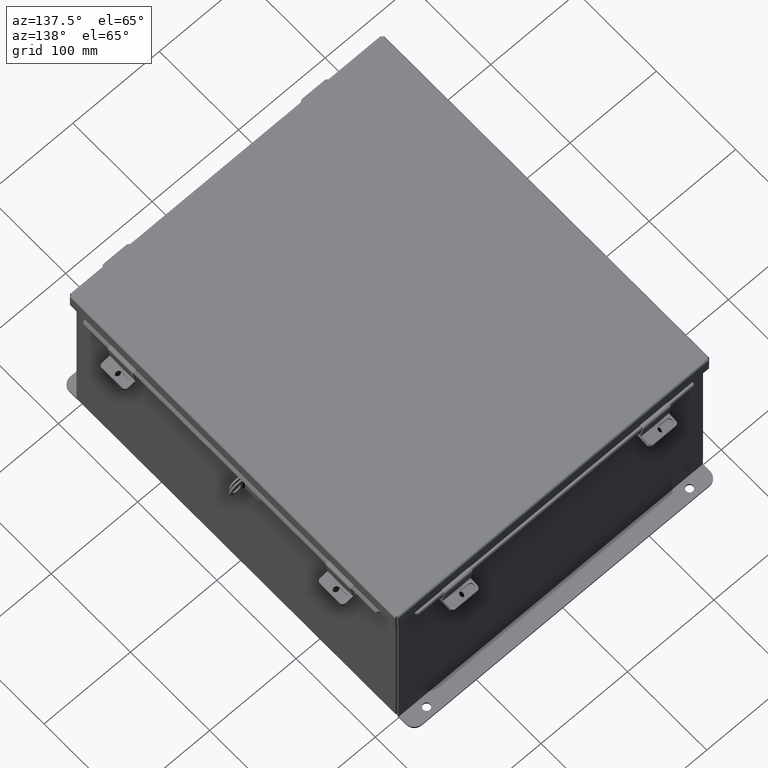
[diagram: clean part render]
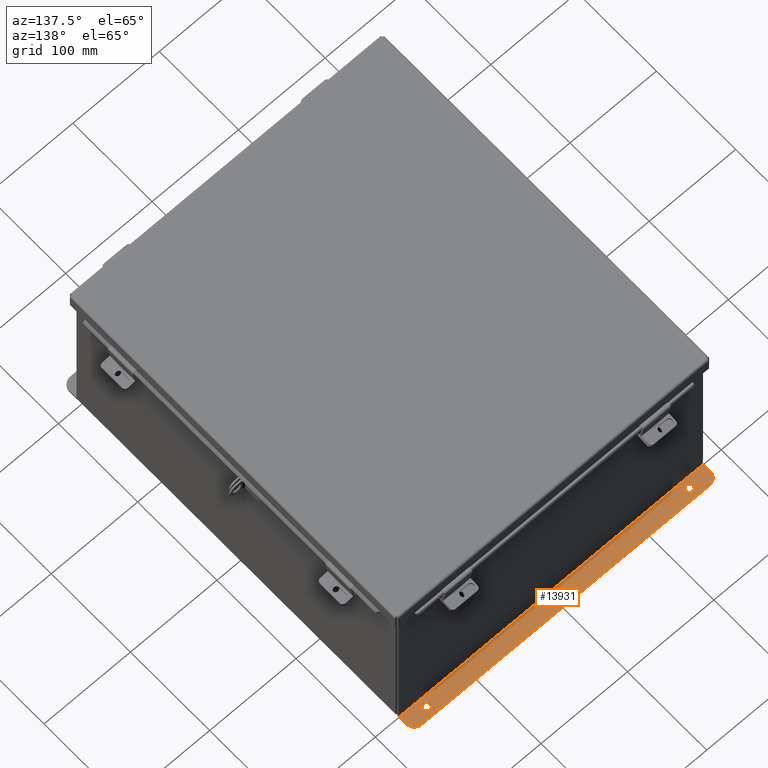
[diagram: same view with one face highlighted and labeled with its STEP entity id]
A machine part, auxiliary view. The second image highlights one B-rep face of the part: STEP entity #13931.
In plain terms, the highlighted planar face has unit normal (0, 0, 1).
Its self-contained STEP definition (entity closure, byte-faithful):
#522 = AXIS2_PLACEMENT_3D ( 'NONE', #19286, #9925, #688 ) ;
#688 = DIRECTION ( 'NONE',  ( 0.0000000000000000000, -1.000000000000000000, 3.502369222646487400E-015 ) ) ;
#771 = DIRECTION ( 'NONE',  ( 0.0000000000000000000, 3.702694488566362300E-015, 1.000000000000000000 ) ) ;
#822 = ORIENTED_EDGE ( 'NONE', *, *, #4914, .T. ) ;
#1345 = DIRECTION ( 'NONE',  ( -0.0000000000000000000, -3.702694488566362300E-015, -1.000000000000000000 ) ) ;
#1605 = DIRECTION ( 'NONE',  ( -0.0000000000000000000, -1.000000000000000000, 3.702694488566362300E-015 ) ) ;
#1795 = ORIENTED_EDGE ( 'NONE', *, *, #11952, .T. ) ;
#2724 = AXIS2_PLACEMENT_3D ( 'NONE', #10601, #1345, #12164 ) ;
#2799 = CARTESIAN_POINT ( 'NONE',  ( 5.987799999999998200, 0.2067999999999996000, -4.112300000000001200 ) ) ;
#2833 = CARTESIAN_POINT ( 'NONE',  ( 6.550299999999998200, 0.3627999999999997300, -4.112300000000002100 ) ) ;
#2847 = DIRECTION ( 'NONE',  ( 1.000000000000000000, -0.0000000000000000000, -0.0000000000000000000 ) ) ;
#3107 = FACE_BOUND ( 'NONE', #3200, .T. ) ;
#3200 = EDGE_LOOP ( 'NONE', ( #17813, #822 ) ) ;
#3345 = EDGE_CURVE ( 'NONE', #18907, #9733, #16320, .T. ) ;
#3710 = VERTEX_POINT ( 'NONE', #10797 ) ;
#3796 = PLANE ( 'NONE',  #13315 ) ;
#3889 = CIRCLE ( 'NONE', #12668, 0.3750000000000000600 ) ;
#3900 = VECTOR ( 'NONE', #15769, 39.37007874015748100 ) ;
#4361 = AXIS2_PLACEMENT_3D ( 'NONE', #5675, #16556, #7226 ) ;
#4376 = DIRECTION ( 'NONE',  ( 0.0000000000000000000, -1.000000000000000000, 4.370956789862820400E-015 ) ) ;
#4526 = CARTESIAN_POINT ( 'NONE',  ( -6.925299999999999100, 0.01299999999999901400, -4.112300000000001200 ) ) ;
#4532 = EDGE_CURVE ( 'NONE', #10941, #12352, #9220, .T. ) ;
#4543 = CARTESIAN_POINT ( 'NONE',  ( 6.925299999999998200, 0.01300000000000010700, -4.112300000000001200 ) ) ;
#4646 = EDGE_CURVE ( 'NONE', #18397, #12262, #3889, .T. ) ;
#4914 = EDGE_CURVE ( 'NONE', #12352, #10941, #19711, .T. ) ;
#5367 = CIRCLE ( 'NONE', #11975, 0.3750000000000000600 ) ;
#5649 = CARTESIAN_POINT ( 'NONE',  ( -5.987800000000000000, 0.5187999999999999300, -4.112300000000002100 ) ) ;
#5675 = CARTESIAN_POINT ( 'NONE',  ( 5.987799999999998200, 0.3627999999999997300, -4.112300000000002100 ) ) ;
#6600 = CARTESIAN_POINT ( 'NONE',  ( 5.987799999999998200, 0.3627999999999997300, -4.112300000000002100 ) ) ;
#7063 = VECTOR ( 'NONE', #17841, 39.37007874015748100 ) ;
#7226 = DIRECTION ( 'NONE',  ( 0.0000000000000000000, -1.000000000000000000, 3.502369222646487400E-015 ) ) ;
#7379 = ORIENTED_EDGE ( 'NONE', *, *, #11607, .F. ) ;
#7943 = CARTESIAN_POINT ( 'NONE',  ( -6.550299999999998200, 0.3628000000000008400, -4.112300000000002100 ) ) ;
#8160 = DIRECTION ( 'NONE',  ( 0.0000000000000000000, -1.000000000000000000, 3.502369222646487400E-015 ) ) ;
#8362 = VERTEX_POINT ( 'NONE', #5649 ) ;
#8388 = LINE ( 'NONE', #16759, #19854 ) ;
#8877 = CARTESIAN_POINT ( 'NONE',  ( -6.550299999999998200, 0.7378000000000000100, -4.112300000000003800 ) ) ;
#9220 = CIRCLE ( 'NONE', #4361, 0.1560000000000001700 ) ;
#9343 = CARTESIAN_POINT ( 'NONE',  ( 6.925299999999998200, 0.0000000000000000000, -4.112300000000001200 ) ) ;
#9365 = EDGE_CURVE ( 'NONE', #12951, #12262, #8388, .T. ) ;
#9515 = DIRECTION ( 'NONE',  ( 0.0000000000000000000, -1.000000000000000000, 4.370956789862820400E-015 ) ) ;
#9577 = CARTESIAN_POINT ( 'NONE',  ( 6.925299999999998200, 0.3627999999999997300, -4.112300000000002100 ) ) ;
#9733 = VERTEX_POINT ( 'NONE', #19300 ) ;
#9925 = DIRECTION ( 'NONE',  ( -0.0000000000000000000, -3.702694488566362300E-015, -1.000000000000000000 ) ) ;
#10054 = CARTESIAN_POINT ( 'NONE',  ( 6.925299999999998200, 0.01300000000000010700, -4.112300000000001200 ) ) ;
#10089 = EDGE_CURVE ( 'NONE', #18397, #13682, #12226, .T. ) ;
#10601 = CARTESIAN_POINT ( 'NONE',  ( -5.987800000000000000, 0.3627999999999997300, -4.112300000000002100 ) ) ;
#10797 = CARTESIAN_POINT ( 'NONE',  ( -5.987800000000000000, 0.2067999999999996000, -4.112300000000001200 ) ) ;
#10941 = VERTEX_POINT ( 'NONE', #17611 ) ;
#11173 = CIRCLE ( 'NONE', #522, 0.1560000000000001700 ) ;
#11186 = ORIENTED_EDGE ( 'NONE', *, *, #16334, .T. ) ;
#11235 = VECTOR ( 'NONE', #1605, 39.37007874015748100 ) ;
#11374 = CIRCLE ( 'NONE', #2724, 0.1560000000000001700 ) ;
#11588 = DIRECTION ( 'NONE',  ( 0.0000000000000000000, -1.000000000000000000, 3.702694488566362300E-015 ) ) ;
#11607 = EDGE_CURVE ( 'NONE', #13682, #18907, #15344, .T. ) ;
#11952 = EDGE_CURVE ( 'NONE', #12951, #9733, #5367, .T. ) ;
#11975 = AXIS2_PLACEMENT_3D ( 'NONE', #7943, #18855, #9515 ) ;
#12164 = DIRECTION ( 'NONE',  ( 0.0000000000000000000, -1.000000000000000000, 3.502369222646487400E-015 ) ) ;
#12226 = LINE ( 'NONE', #9343, #11235 ) ;
#12262 = VERTEX_POINT ( 'NONE', #18090 ) ;
#12352 = VERTEX_POINT ( 'NONE', #2799 ) ;
#12668 = AXIS2_PLACEMENT_3D ( 'NONE', #2833, #13677, #4376 ) ;
#12951 = VERTEX_POINT ( 'NONE', #8877 ) ;
#13315 = AXIS2_PLACEMENT_3D ( 'NONE', #17817, #771, #11588 ) ;
#13333 = AXIS2_PLACEMENT_3D ( 'NONE', #6600, #17486, #8160 ) ;
#13677 = DIRECTION ( 'NONE',  ( 0.0000000000000000000, 3.702694488566362300E-015, 1.000000000000000000 ) ) ;
#13682 = VERTEX_POINT ( 'NONE', #4543 ) ;
#13931 = ADVANCED_FACE ( 'NONE', ( #15992, #3107, #19662 ), #3796, .T. ) ;
#14263 = ORIENTED_EDGE ( 'NONE', *, *, #10089, .F. ) ;
#14757 = ORIENTED_EDGE ( 'NONE', *, *, #3345, .F. ) ;
#15344 = LINE ( 'NONE', #10054, #7063 ) ;
#15583 = EDGE_LOOP ( 'NONE', ( #14263, #15874, #18600, #1795, #14757, #7379 ) ) ;
#15769 = DIRECTION ( 'NONE',  ( -0.0000000000000000000, 1.000000000000000000, -3.702694488566362300E-015 ) ) ;
#15874 = ORIENTED_EDGE ( 'NONE', *, *, #4646, .T. ) ;
#15992 = FACE_BOUND ( 'NONE', #17090, .T. ) ;
#16320 = LINE ( 'NONE', #16870, #3900 ) ;
#16334 = EDGE_CURVE ( 'NONE', #3710, #8362, #11173, .T. ) ;
#16556 = DIRECTION ( 'NONE',  ( -0.0000000000000000000, -3.702694488566362300E-015, -1.000000000000000000 ) ) ;
#16759 = CARTESIAN_POINT ( 'NONE',  ( 6.925299999999998200, 0.7378000000000000100, -4.112300000000003800 ) ) ;
#16870 = CARTESIAN_POINT ( 'NONE',  ( -6.925300000000000900, 0.7378000000000000100, -4.112300000000003800 ) ) ;
#17090 = EDGE_LOOP ( 'NONE', ( #19963, #11186 ) ) ;
#17486 = DIRECTION ( 'NONE',  ( -0.0000000000000000000, -3.702694488566362300E-015, -1.000000000000000000 ) ) ;
#17611 = CARTESIAN_POINT ( 'NONE',  ( 5.987799999999998200, 0.5187999999999999300, -4.112300000000002100 ) ) ;
#17657 = EDGE_CURVE ( 'NONE', #8362, #3710, #11374, .T. ) ;
#17813 = ORIENTED_EDGE ( 'NONE', *, *, #4532, .T. ) ;
#17817 = CARTESIAN_POINT ( 'NONE',  ( 0.0000000000000000000, -1.420560956705417000E-014, -4.112300000000001200 ) ) ;
#17841 = DIRECTION ( 'NONE',  ( -1.000000000000000000, -3.944735958968223300E-017, 1.460615209412118400E-031 ) ) ;
#18090 = CARTESIAN_POINT ( 'NONE',  ( 6.550299999999998200, 0.7378000000000000100, -4.112300000000003800 ) ) ;
#18397 = VERTEX_POINT ( 'NONE', #9577 ) ;
#18600 = ORIENTED_EDGE ( 'NONE', *, *, #9365, .F. ) ;
#18855 = DIRECTION ( 'NONE',  ( 0.0000000000000000000, 3.702694488566362300E-015, 1.000000000000000000 ) ) ;
#18907 = VERTEX_POINT ( 'NONE', #4526 ) ;
#19286 = CARTESIAN_POINT ( 'NONE',  ( -5.987800000000000000, 0.3627999999999997300, -4.112300000000002100 ) ) ;
#19300 = CARTESIAN_POINT ( 'NONE',  ( -6.925300000000000900, 0.3628000000000008400, -4.112300000000002100 ) ) ;
#19662 = FACE_OUTER_BOUND ( 'NONE', #15583, .T. ) ;
#19711 = CIRCLE ( 'NONE', #13333, 0.1560000000000001700 ) ;
#19854 = VECTOR ( 'NONE', #2847, 39.37007874015748100 ) ;
#19963 = ORIENTED_EDGE ( 'NONE', *, *, #17657, .T. ) ;